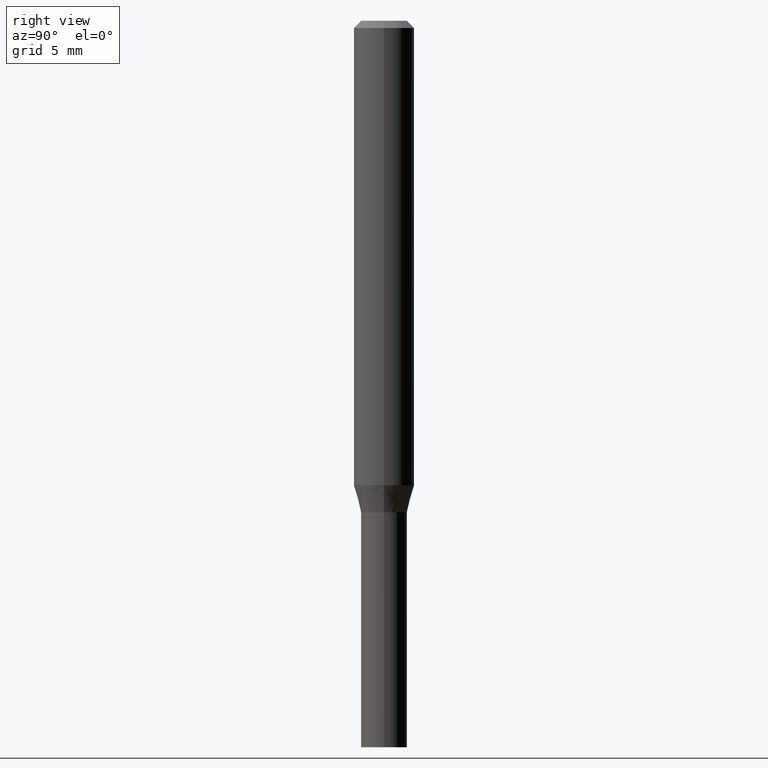
[diagram: clean part render]
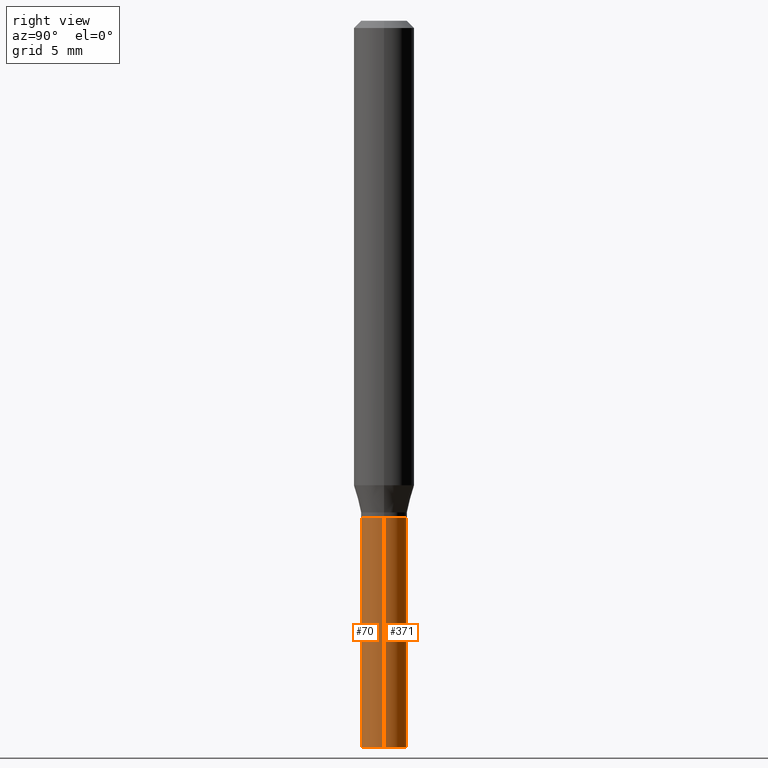
[diagram: same view with one multi-face feature highlighted, each face labeled with its STEP entity id]
A machine part, right view. The highlighted faces form ONE feature: a constant-radius fillet chain: 2 tangent blend faces with common blend radius 1.2065 mm. The faces share edges in the B-rep.
Their STEP definitions:
[1] entity #70 (Cylinder):
#4 = AXIS2_PLACEMENT_3D ( 'NONE', #201, #378, #16 ) ;
#16 = DIRECTION ( 'NONE',  ( 1.000000000000000000, -6.982962677686267499E-15, 4.876176775795935793E-29 ) ) ;
#41 = EDGE_CURVE ( 'NONE', #181, #147, #295, .T. ) ;
#50 = VERTEX_POINT ( 'NONE', #235 ) ;
#53 = DIRECTION ( 'NONE',  ( -2.445468806185136597E-29, 3.491481338843145583E-15, 1.000000000000000000 ) ) ;
#58 = CARTESIAN_POINT ( 'NONE',  ( 3.668203209277704895E-29, -5.237222008264718177E-15, -1.500000000000000222 ) ) ;
#66 = ORIENTED_EDGE ( 'NONE', *, *, #226, .T. ) ;
#70 = ADVANCED_FACE ( 'NONE', ( #92 ), #336, .T. ) ;
#80 = AXIS2_PLACEMENT_3D ( 'NONE', #466, #109, #327 ) ;
#92 = FACE_OUTER_BOUND ( 'NONE', #222, .T. ) ;
#96 = CARTESIAN_POINT ( 'NONE',  ( -0.04749999999999999362, -4.070487390803424145E-15, -1.500000000000000222 ) ) ;
#109 = DIRECTION ( 'NONE',  ( -2.445468806185136597E-29, 3.491481338843145583E-15, 1.000000000000000000 ) ) ;
#110 = VECTOR ( 'NONE', #452, 39.37007874015748143 ) ;
#134 = VECTOR ( 'NONE', #416, 39.37007874015748143 ) ;
#147 = VERTEX_POINT ( 'NONE', #237 ) ;
#171 = CARTESIAN_POINT ( 'NONE',  ( 0.04749999999999999362, -5.568912735454815688E-15, -1.500000000000000222 ) ) ;
#172 = CARTESIAN_POINT ( 'NONE',  ( -0.04749999999999999362, 3.375077994860475429E-16, -2.336494167871079910E-30 ) ) ;
#181 = VERTEX_POINT ( 'NONE', #171 ) ;
#186 = ORIENTED_EDGE ( 'NONE', *, *, #299, .F. ) ;
#201 = CARTESIAN_POINT ( 'NONE',  ( 0.000000000000000000, 0.000000000000000000, 0.000000000000000000 ) ) ;
#222 = EDGE_LOOP ( 'NONE', ( #186, #66, #393, #255 ) ) ;
#226 = EDGE_CURVE ( 'NONE', #352, #181, #244, .T. ) ;
#235 = CARTESIAN_POINT ( 'NONE',  ( -0.04749999999999999362, -4.070487390803424145E-15, -1.025000000000000133 ) ) ;
#237 = CARTESIAN_POINT ( 'NONE',  ( 0.04749999999999999362, -3.910459099504321822E-15, -1.025000000000000133 ) ) ;
#244 = CIRCLE ( 'NONE', #390, 0.04749999999999999362 ) ;
#255 = ORIENTED_EDGE ( 'NONE', *, *, #387, .F. ) ;
#295 = LINE ( 'NONE', #339, #134 ) ;
#299 = EDGE_CURVE ( 'NONE', #352, #50, #374, .T. ) ;
#308 = DIRECTION ( 'NONE',  ( 1.000000000000000000, -6.982962677686261977E-15, 0.000000000000000000 ) ) ;
#327 = DIRECTION ( 'NONE',  ( 1.000000000000000000, -6.982962677686261977E-15, 0.000000000000000000 ) ) ;
#336 = CYLINDRICAL_SURFACE ( 'NONE', #4, 0.04749999999999999362 ) ;
#339 = CARTESIAN_POINT ( 'NONE',  ( 0.04749999999999999362, -3.316907271900976589E-16, 2.316183968503069081E-30 ) ) ;
#352 = VERTEX_POINT ( 'NONE', #96 ) ;
#374 = LINE ( 'NONE', #172, #110 ) ;
#378 = DIRECTION ( 'NONE',  ( -2.445468806185136597E-29, 3.491481338843145583E-15, 1.000000000000000000 ) ) ;
#387 = EDGE_CURVE ( 'NONE', #50, #147, #433, .T. ) ;
#390 = AXIS2_PLACEMENT_3D ( 'NONE', #58, #53, #308 ) ;
#393 = ORIENTED_EDGE ( 'NONE', *, *, #41, .T. ) ;
#416 = DIRECTION ( 'NONE',  ( -2.445468806185136877E-29, 3.491481338843145188E-15, 1.000000000000000000 ) ) ;
#433 = CIRCLE ( 'NONE', #80, 0.04749999999999999362 ) ;
#452 = DIRECTION ( 'NONE',  ( -2.445468806185136877E-29, 3.491481338843145188E-15, 1.000000000000000000 ) ) ;
#466 = CARTESIAN_POINT ( 'NONE',  ( 2.506605526339765180E-29, -3.578768372314224311E-15, -1.025000000000000133 ) ) ;
[2] entity #371 (Cylinder):
#13 = DIRECTION ( 'NONE',  ( 1.000000000000000000, -6.982962677686261977E-15, 0.000000000000000000 ) ) ;
#15 = ORIENTED_EDGE ( 'NONE', *, *, #63, .F. ) ;
#18 = CYLINDRICAL_SURFACE ( 'NONE', #223, 0.04749999999999999362 ) ;
#37 = ORIENTED_EDGE ( 'NONE', *, *, #299, .T. ) ;
#41 = EDGE_CURVE ( 'NONE', #181, #147, #295, .T. ) ;
#48 = CARTESIAN_POINT ( 'NONE',  ( 3.668203209277704895E-29, -5.237222008264718177E-15, -1.500000000000000222 ) ) ;
#49 = CIRCLE ( 'NONE', #414, 0.04749999999999999362 ) ;
#50 = VERTEX_POINT ( 'NONE', #235 ) ;
#63 = EDGE_CURVE ( 'NONE', #147, #50, #49, .T. ) ;
#87 = DIRECTION ( 'NONE',  ( -2.445468806185136597E-29, 3.491481338843145583E-15, 1.000000000000000000 ) ) ;
#96 = CARTESIAN_POINT ( 'NONE',  ( -0.04749999999999999362, -4.070487390803424145E-15, -1.500000000000000222 ) ) ;
#110 = VECTOR ( 'NONE', #452, 39.37007874015748143 ) ;
#119 = DIRECTION ( 'NONE',  ( 1.000000000000000000, -6.982962677686261977E-15, 0.000000000000000000 ) ) ;
#134 = VECTOR ( 'NONE', #416, 39.37007874015748143 ) ;
#147 = VERTEX_POINT ( 'NONE', #237 ) ;
#168 = DIRECTION ( 'NONE',  ( 1.000000000000000000, -6.982962677686267499E-15, 4.876176775795935793E-29 ) ) ;
#171 = CARTESIAN_POINT ( 'NONE',  ( 0.04749999999999999362, -5.568912735454815688E-15, -1.500000000000000222 ) ) ;
#172 = CARTESIAN_POINT ( 'NONE',  ( -0.04749999999999999362, 3.375077994860475429E-16, -2.336494167871079910E-30 ) ) ;
#177 = CIRCLE ( 'NONE', #366, 0.04749999999999999362 ) ;
#181 = VERTEX_POINT ( 'NONE', #171 ) ;
#223 = AXIS2_PLACEMENT_3D ( 'NONE', #409, #87, #168 ) ;
#235 = CARTESIAN_POINT ( 'NONE',  ( -0.04749999999999999362, -4.070487390803424145E-15, -1.025000000000000133 ) ) ;
#237 = CARTESIAN_POINT ( 'NONE',  ( 0.04749999999999999362, -3.910459099504321822E-15, -1.025000000000000133 ) ) ;
#253 = ORIENTED_EDGE ( 'NONE', *, *, #41, .F. ) ;
#263 = FACE_OUTER_BOUND ( 'NONE', #410, .T. ) ;
#265 = DIRECTION ( 'NONE',  ( -2.445468806185136597E-29, 3.491481338843145583E-15, 1.000000000000000000 ) ) ;
#284 = EDGE_CURVE ( 'NONE', #181, #352, #177, .T. ) ;
#295 = LINE ( 'NONE', #339, #134 ) ;
#299 = EDGE_CURVE ( 'NONE', #352, #50, #374, .T. ) ;
#337 = DIRECTION ( 'NONE',  ( -2.445468806185136597E-29, 3.491481338843145583E-15, 1.000000000000000000 ) ) ;
#338 = ORIENTED_EDGE ( 'NONE', *, *, #284, .T. ) ;
#339 = CARTESIAN_POINT ( 'NONE',  ( 0.04749999999999999362, -3.316907271900976589E-16, 2.316183968503069081E-30 ) ) ;
#352 = VERTEX_POINT ( 'NONE', #96 ) ;
#366 = AXIS2_PLACEMENT_3D ( 'NONE', #48, #337, #13 ) ;
#371 = ADVANCED_FACE ( 'NONE', ( #263 ), #18, .T. ) ;
#374 = LINE ( 'NONE', #172, #110 ) ;
#409 = CARTESIAN_POINT ( 'NONE',  ( 0.000000000000000000, 0.000000000000000000, 0.000000000000000000 ) ) ;
#410 = EDGE_LOOP ( 'NONE', ( #338, #37, #15, #253 ) ) ;
#414 = AXIS2_PLACEMENT_3D ( 'NONE', #445, #265, #119 ) ;
#416 = DIRECTION ( 'NONE',  ( -2.445468806185136877E-29, 3.491481338843145188E-15, 1.000000000000000000 ) ) ;
#445 = CARTESIAN_POINT ( 'NONE',  ( 2.506605526339765180E-29, -3.578768372314224311E-15, -1.025000000000000133 ) ) ;
#452 = DIRECTION ( 'NONE',  ( -2.445468806185136877E-29, 3.491481338843145188E-15, 1.000000000000000000 ) ) ;